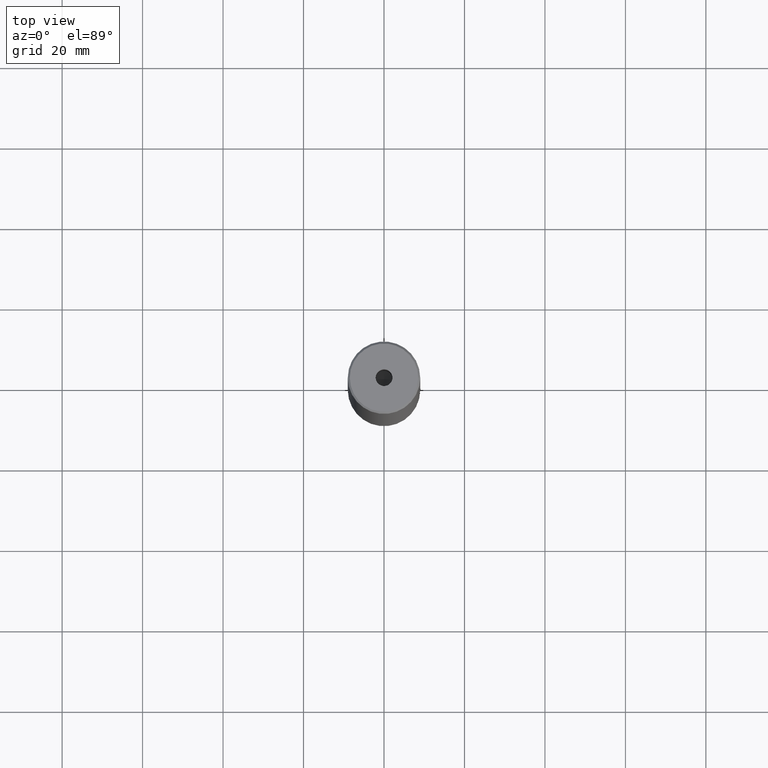
[diagram: clean part render]
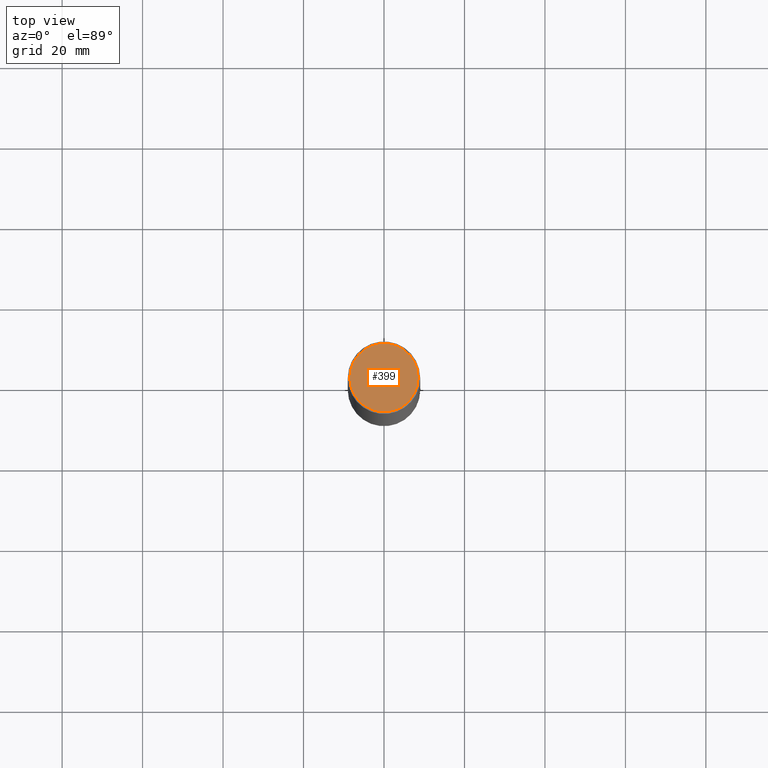
[diagram: same view with one face highlighted and labeled with its STEP entity id]
A machine part, top view. The second image highlights one B-rep face of the part: STEP entity #399.
In plain terms, the highlighted planar face has unit normal (0, -0, 1).
Its self-contained STEP definition (entity closure, byte-faithful):
#10 = EDGE_CURVE ( 'NONE', #388, #80, #296, .T. ) ;
#13 = VERTEX_POINT ( 'NONE', #200 ) ;
#21 = DIRECTION ( 'NONE',  ( -0.000000000000000000, -0.000000000000000000, 1.000000000000000000 ) ) ;
#53 = AXIS2_PLACEMENT_3D ( 'NONE', #497, #129, #320 ) ;
#57 = DIRECTION ( 'NONE',  ( 1.000000000000000000, 0.000000000000000000, 0.000000000000000000 ) ) ;
#58 = ORIENTED_EDGE ( 'NONE', *, *, #235, .F. ) ;
#63 = EDGE_LOOP ( 'NONE', ( #58, #553 ) ) ;
#64 = DIRECTION ( 'NONE',  ( 1.000000000000000000, 0.000000000000000000, 0.000000000000000000 ) ) ;
#76 = CARTESIAN_POINT ( 'NONE',  ( 8.499999999999980460, 1.071565949253932744E-15, 0.000000000000000000 ) ) ;
#80 = VERTEX_POINT ( 'NONE', #76 ) ;
#85 = DIRECTION ( 'NONE',  ( 1.000000000000000000, 0.000000000000000000, 0.000000000000000000 ) ) ;
#110 = CIRCLE ( 'NONE', #445, 2.099999999999998757 ) ;
#113 = DIRECTION ( 'NONE',  ( -0.000000000000000000, -0.000000000000000000, 1.000000000000000000 ) ) ;
#129 = DIRECTION ( 'NONE',  ( 0.000000000000000000, -0.000000000000000000, 1.000000000000000000 ) ) ;
#142 = EDGE_LOOP ( 'NONE', ( #423, #391 ) ) ;
#185 = DIRECTION ( 'NONE',  ( 1.000000000000000000, 0.000000000000000000, 0.000000000000000000 ) ) ;
#193 = CARTESIAN_POINT ( 'NONE',  ( 0.000000000000000000, 0.000000000000000000, 0.000000000000000000 ) ) ;
#200 = CARTESIAN_POINT ( 'NONE',  ( -2.099999999999998757, 2.571758278209440478E-16, -1.990051048614449116E-16 ) ) ;
#209 = DIRECTION ( 'NONE',  ( -0.000000000000000000, -0.000000000000000000, 1.000000000000000000 ) ) ;
#235 = EDGE_CURVE ( 'NONE', #265, #13, #331, .T. ) ;
#264 = CARTESIAN_POINT ( 'NONE',  ( 0.000000000000000000, 0.000000000000000000, -1.990051048614449116E-16 ) ) ;
#265 = VERTEX_POINT ( 'NONE', #397 ) ;
#296 = CIRCLE ( 'NONE', #443, 8.499999999999980460 ) ;
#320 = DIRECTION ( 'NONE',  ( 1.000000000000000000, 0.000000000000000000, 0.000000000000000000 ) ) ;
#331 = CIRCLE ( 'NONE', #586, 2.099999999999998757 ) ;
#337 = AXIS2_PLACEMENT_3D ( 'NONE', #193, #21, #185 ) ;
#366 = CARTESIAN_POINT ( 'NONE',  ( 0.000000000000000000, 0.000000000000000000, 0.000000000000000000 ) ) ;
#372 = FACE_OUTER_BOUND ( 'NONE', #142, .T. ) ;
#388 = VERTEX_POINT ( 'NONE', #407 ) ;
#391 = ORIENTED_EDGE ( 'NONE', *, *, #514, .T. ) ;
#397 = CARTESIAN_POINT ( 'NONE',  ( 2.099999999999998757, 0.000000000000000000, -1.990051048614449116E-16 ) ) ;
#399 = ADVANCED_FACE ( 'NONE', ( #491, #372 ), #451, .T. ) ;
#407 = CARTESIAN_POINT ( 'NONE',  ( -8.499999999999980460, 0.000000000000000000, 0.000000000000000000 ) ) ;
#423 = ORIENTED_EDGE ( 'NONE', *, *, #10, .T. ) ;
#437 = CIRCLE ( 'NONE', #337, 8.499999999999980460 ) ;
#443 = AXIS2_PLACEMENT_3D ( 'NONE', #366, #113, #64 ) ;
#445 = AXIS2_PLACEMENT_3D ( 'NONE', #458, #506, #57 ) ;
#451 = PLANE ( 'NONE',  #53 ) ;
#458 = CARTESIAN_POINT ( 'NONE',  ( 0.000000000000000000, 0.000000000000000000, -1.990051048614449116E-16 ) ) ;
#491 = FACE_BOUND ( 'NONE', #63, .T. ) ;
#497 = CARTESIAN_POINT ( 'NONE',  ( 0.000000000000000000, 0.000000000000000000, 0.000000000000000000 ) ) ;
#506 = DIRECTION ( 'NONE',  ( -0.000000000000000000, -0.000000000000000000, 1.000000000000000000 ) ) ;
#514 = EDGE_CURVE ( 'NONE', #80, #388, #437, .T. ) ;
#553 = ORIENTED_EDGE ( 'NONE', *, *, #574, .F. ) ;
#574 = EDGE_CURVE ( 'NONE', #13, #265, #110, .T. ) ;
#586 = AXIS2_PLACEMENT_3D ( 'NONE', #264, #209, #85 ) ;